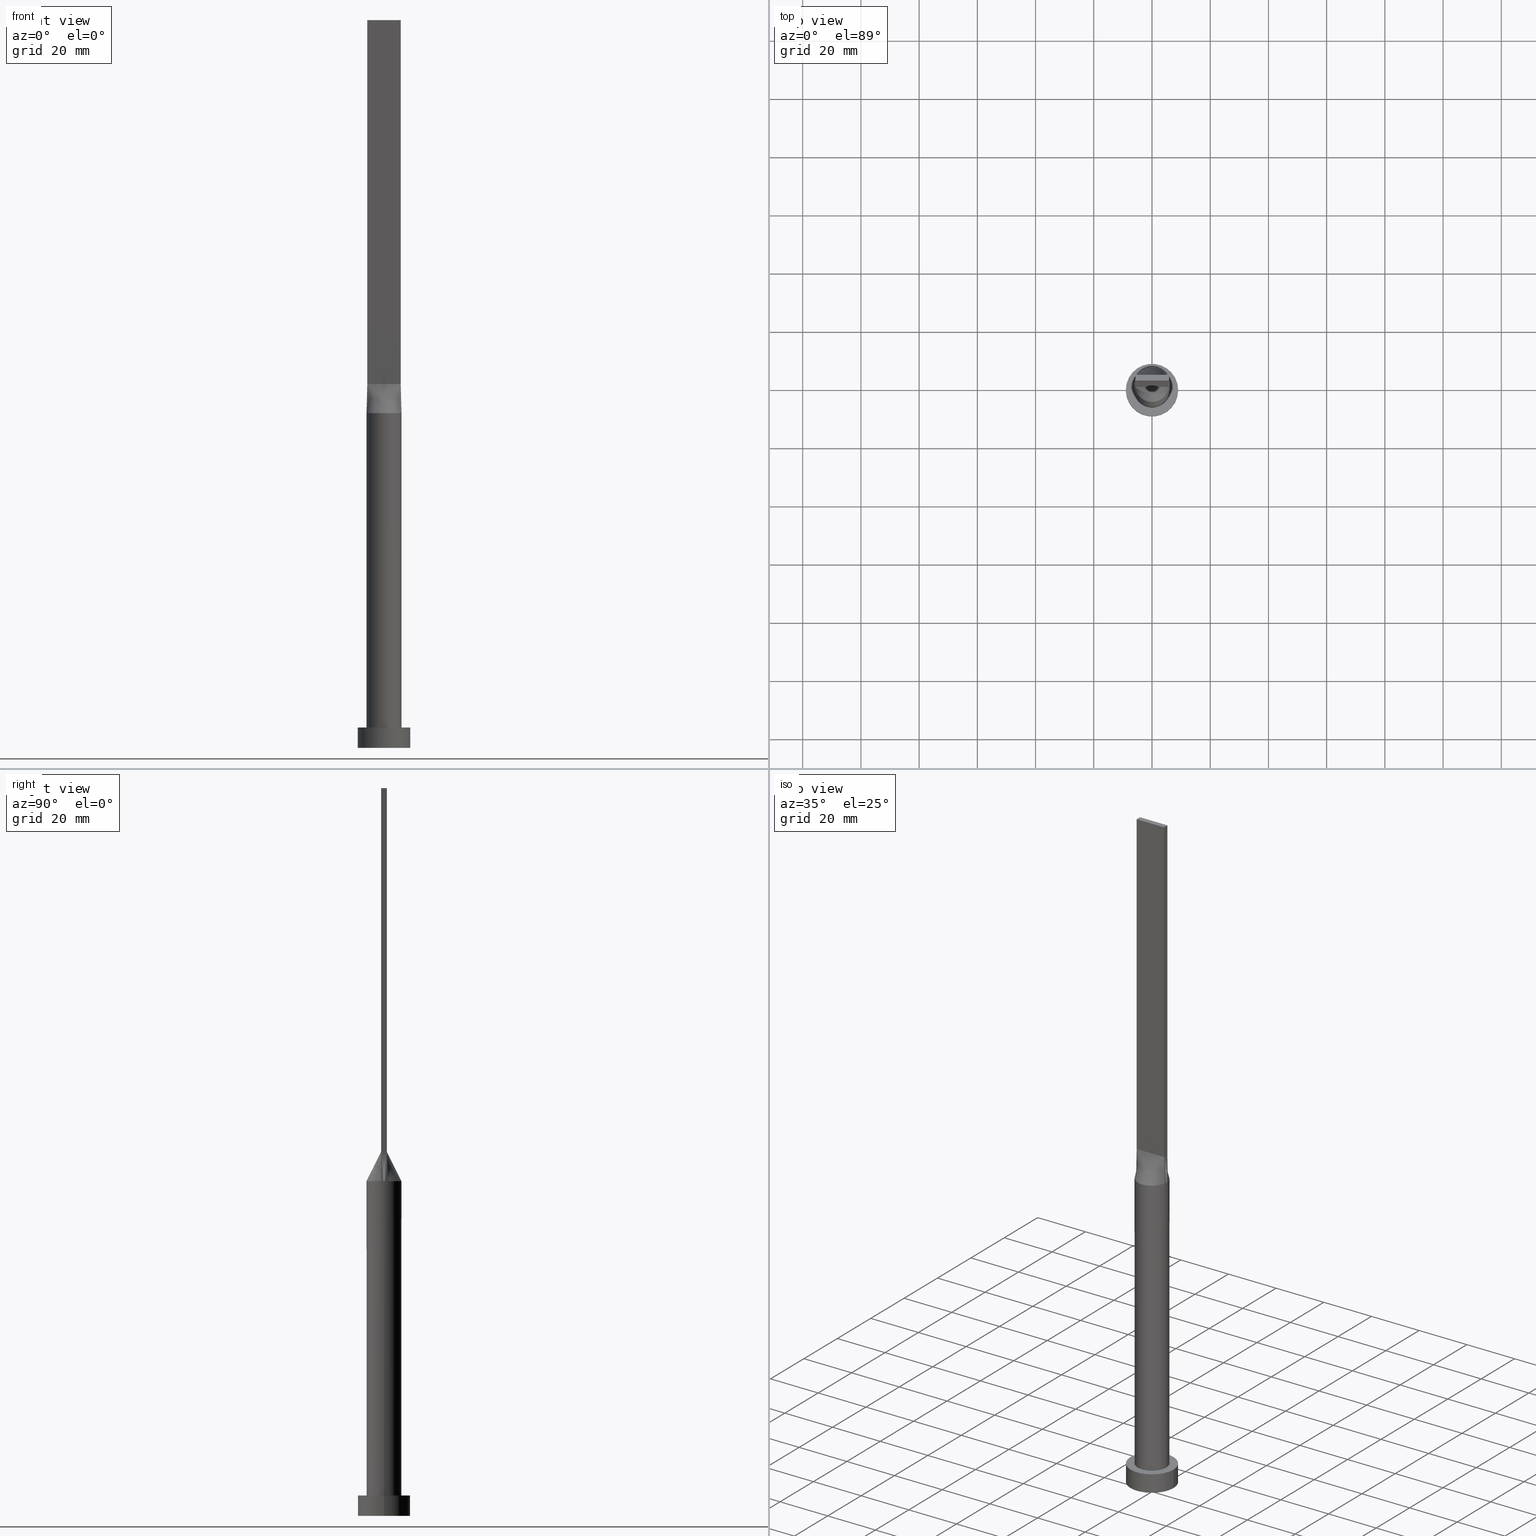
[diagram: canonical four-view strip — front | top / right | iso, engineering-drawing reading convention]
A machine part, canonical four-view strip (front | top / right | iso — engineering-drawing reading convention). The complete STEP part file that produces these views, byte-faithful:
ISO-10303-21;
HEADER;
FILE_DESCRIPTION (( 'STEP AP203' ),
    '1' );
FILE_NAME ('db99.STEP',
    '2023-02-13T08:34:24',
    ( '' ),
    ( '' ),
    'SwSTEP 2.0',
    'SolidWorks 2019',
    '' );
FILE_SCHEMA (( 'CONFIG_CONTROL_DESIGN' ));
ENDSEC;

DATA;
#1 = ORIENTED_EDGE ( 'NONE', *, *, #300, .T. ) ;
#2 = EDGE_CURVE ( 'NONE', #331, #342, #517, .T. ) ;
#3 = ORIENTED_EDGE ( 'NONE', *, *, #456, .F. ) ;
#4 = CARTESIAN_POINT ( 'NONE',  ( 5.969986125248324171, 0.6904323696084009310, 115.0000000000000000 ) ) ;
#5 = CARTESIAN_POINT ( 'NONE',  ( -3.129188161608685181, 5.133661927581553819, 114.9999999999999858 ) ) ;
#6 = CLOSED_SHELL ( 'NONE', ( #247, #363, #410, #173, #440, #500, #487, #255, #319, #545, #97, #146, #549, #113, #106 ) ) ;
#7 = FACE_OUTER_BOUND ( 'NONE', #303, .T. ) ;
#8 = CARTESIAN_POINT ( 'NONE',  ( 3.755743307515265084, 4.694751915224760097, 114.9999999999999858 ) ) ;
#9 = CC_DESIGN_APPROVAL ( #100, ( #467 ) ) ;
#10 = DIRECTION ( 'NONE',  ( 0.000000000000000000, -0.000000000000000000, -1.000000000000000000 ) ) ;
#11 = VERTEX_POINT ( 'NONE', #142 ) ;
#12 = CARTESIAN_POINT ( 'NONE',  ( 4.038230363771782905, 4.452009983475585742, 115.0000000000000000 ) ) ;
#13 = FACE_OUTER_BOUND ( 'NONE', #136, .T. ) ;
#14 = ORIENTED_EDGE ( 'NONE', *, *, #385, .F. ) ;
#15 = EDGE_LOOP ( 'NONE', ( #306, #243, #346, #465 ) ) ;
#16 = CARTESIAN_POINT ( 'NONE',  ( -5.674157483178163375, 2.041064365575947726, 114.9999999999999716 ) ) ;
#17 = CARTESIAN_POINT ( 'NONE',  ( -3.755743307515264195, 4.694751915224762762, 114.9999999999999858 ) ) ;
#18 = EDGE_CURVE ( 'NONE', #240, #414, #288, .T. ) ;
#19 = ORIENTED_EDGE ( 'NONE', *, *, #429, .T. ) ;
#20 = CARTESIAN_POINT ( 'NONE',  ( -5.911270528918048051, 1.028047048507485517, 115.0000000000000000 ) ) ;
#21 = CARTESIAN_POINT ( 'NONE',  ( -5.969986125248324171, -0.6904323696084029294, 115.0000000000000000 ) ) ;
#22 = CIRCLE ( 'NONE', #96, 9.000000000000000000 ) ;
#23 = CARTESIAN_POINT ( 'NONE',  ( -5.826866859193279069, 1.513368149424918263, 115.0000000000000000 ) ) ;
#24 = CARTESIAN_POINT ( 'NONE',  ( 0.000000000000000000, 0.000000000000000000, 115.0000000000000000 ) ) ;
#25 = CARTESIAN_POINT ( 'NONE',  ( 4.788055724916948641, 3.685825800347680925, 114.9999999999999716 ) ) ;
#26 = CARTESIAN_POINT ( 'NONE',  ( 6.000000000000000888, 7.347880794884120722E-16, 115.0000000000000000 ) ) ;
#27 = COORDINATED_UNIVERSAL_TIME_OFFSET ( 1, 0, .AHEAD. ) ;
#28 = EDGE_CURVE ( 'NONE', #480, #150, #187, .T. ) ;
#29 = CARTESIAN_POINT ( 'NONE',  ( -5.750000000000000000, -0.9999999999999988898, 125.0000000000000000 ) ) ;
#30 = APPLICATION_PROTOCOL_DEFINITION ( 'international standard', 'config_control_design', 1994, #156 ) ;
#31 = AXIS2_PLACEMENT_3D ( 'NONE', #313, #167, #355 ) ;
#32 = FACE_OUTER_BOUND ( 'NONE', #198, .T. ) ;
#33 = CARTESIAN_POINT ( 'NONE',  ( -5.750000000000000000, 1.000000000000000000, 250.0000000000000000 ) ) ;
#34 = DATE_AND_TIME ( #276, #121 ) ;
#35 = CARTESIAN_POINT ( 'NONE',  ( 5.270833333333333037, 1.000000000000000000, 125.0000000000000000 ) ) ;
#36 = COORDINATED_UNIVERSAL_TIME_OFFSET ( 1, 0, .AHEAD. ) ;
#37 = DIRECTION ( 'NONE',  ( 1.000000000000000000, -7.542275982507857147E-17, 0.000000000000000000 ) ) ;
#38 = CARTESIAN_POINT ( 'NONE',  ( 5.155904004142093378, 3.127085030567957169, 114.9999999999999432 ) ) ;
#39 = DATE_AND_TIME ( #318, #130 ) ;
#40 = ORIENTED_EDGE ( 'NONE', *, *, #211, .F. ) ;
#41 = APPROVAL_PERSON_ORGANIZATION ( #264, #171, #463 ) ;
#42 = CARTESIAN_POINT ( 'NONE',  ( 5.911270528918047162, -1.028047048507488848, 115.0000000000000000 ) ) ;
#43 = ORIENTED_EDGE ( 'NONE', *, *, #568, .F. ) ;
#44 = EDGE_CURVE ( 'NONE', #277, #11, #526, .T. ) ;
#45 = CARTESIAN_POINT ( 'NONE',  ( 2.047812955694711778, -5.654083712646525761, 115.0000000000000000 ) ) ;
#46 = DIRECTION ( 'NONE',  ( -0.000000000000000000, 0.000000000000000000, -1.000000000000000000 ) ) ;
#47 = ORIENTED_EDGE ( 'NONE', *, *, #48, .F. ) ;
#48 = EDGE_CURVE ( 'NONE', #342, #277, #148, .T. ) ;
#49 = CARTESIAN_POINT ( 'NONE',  ( -3.129188161608687402, -5.133661927581552042, 115.0000000000000426 ) ) ;
#50 = B_SPLINE_CURVE_WITH_KNOTS ( 'NONE', 3,
 ( #375, #147, #332, #345, #519, #289, #8, #476, #386, #298, #64, #54, #196, #521, #239, #578, #441, #430, #5, #17, #338, #380, #523, #293, #53, #60 ),
 .UNSPECIFIED., .F., .F.,
 ( 4, 2, 2, 2, 2, 2, 2, 2, 2, 2, 2, 2, 4 ),
 ( 0.000000000000000000, 0.1250000000000000000, 0.2500000000000000000, 0.3125000000000000000, 0.3750000000000000000, 0.4375000000000000000, 0.5000000000000000000, 0.5625000000000000000, 0.6250000000000000000, 0.6875000000000000000, 0.7500000000000000000, 0.8750000000000000000, 1.000000000000000000 ),
 .UNSPECIFIED. ) ;
#51 = VERTEX_POINT ( 'NONE', #324 ) ;
#52 = AXIS2_PLACEMENT_3D ( 'NONE', #263, #535, #397 ) ;
#53 = CARTESIAN_POINT ( 'NONE',  ( -5.826866859193279069, 1.513368149424918263, 115.0000000000000000 ) ) ;
#54 = CARTESIAN_POINT ( 'NONE',  ( 0.8409966403356972098, 5.955311887059998810, 115.0000000000000000 ) ) ;
#55 = LINE ( 'NONE', #393, #426 ) ;
#56 = APPLICATION_CONTEXT ( 'configuration controlled 3d designs of mechanical parts and assemblies' ) ;
#57 = VERTEX_POINT ( 'NONE', #619 ) ;
#58 = CARTESIAN_POINT ( 'NONE',  ( -1.197916666666670515, 1.000000000000000000, 125.0000000000000000 ) ) ;
#59 = EDGE_CURVE ( 'NONE', #331, #205, #282, .T. ) ;
#60 = CARTESIAN_POINT ( 'NONE',  ( -5.911281259919041631, 1.028048927730119244, 115.0000000000000000 ) ) ;
#61 = LOCAL_TIME ( 9, 34, 24.00000000000000000, #84 ) ;
#62 = CARTESIAN_POINT ( 'NONE',  ( 0.4205485882577719159, 6.000000000000000000, 115.0000000000000142 ) ) ;
#63 = CARTESIAN_POINT ( 'NONE',  ( 0.000000000000000000, 0.000000000000000000, 0.000000000000000000 ) ) ;
#64 = CARTESIAN_POINT ( 'NONE',  ( 1.654707822076785684, 5.782296865845954592, 114.9999999999999858 ) ) ;
#65 = CARTESIAN_POINT ( 'NONE',  ( -5.750000000000000000, -0.9999999999999988898, 250.0000000000000000 ) ) ;
#66 = PRODUCT ( 'db99', 'db99', '', ( #540 ) ) ;
#67 = CARTESIAN_POINT ( 'NONE',  ( -5.750000000000000000, -0.9999999999999988898, 125.0000000000000000 ) ) ;
#68 = CARTESIAN_POINT ( 'NONE',  ( -3.129188161608685181, 5.133661927581553819, 114.9999999999999858 ) ) ;
#69 = AXIS2_PLACEMENT_3D ( 'NONE', #160, #388, #579 ) ;
#70 = CARTESIAN_POINT ( 'NONE',  ( 9.000000000000000000, 1.102182119232617714E-15, 7.000000000000000000 ) ) ;
#71 = DIRECTION ( 'NONE',  ( -0.000000000000000000, -0.000000000000000000, -1.000000000000000000 ) ) ;
#72 = CIRCLE ( 'NONE', #297, 9.000000000000000000 ) ;
#73 = CARTESIAN_POINT ( 'NONE',  ( -5.830635264459023581, 1.014023524253742758, 120.0000000000000000 ) ) ;
#74 = CARTESIAN_POINT ( 'NONE',  ( -5.750000000000000000, -0.6666666666666660745, 125.0000000000000000 ) ) ;
#75 = EDGE_LOOP ( 'NONE', ( #427, #582 ) ) ;
#76 = EDGE_CURVE ( 'NONE', #414, #205, #489, .T. ) ;
#77 = DIRECTION ( 'NONE',  ( 0.000000000000000000, 0.000000000000000000, 1.000000000000000000 ) ) ;
#78 = ORIENTED_EDGE ( 'NONE', *, *, #415, .F. ) ;
#79 = APPROVAL_STATUS ( 'not_yet_approved' ) ;
#80 = CARTESIAN_POINT ( 'NONE',  ( -5.750000000000000000, 0.3333333333333333148, 125.0000000000000000 ) ) ;
#81 = VECTOR ( 'NONE', #527, 1000.000000000000114 ) ;
#82 = ORIENTED_EDGE ( 'NONE', *, *, #435, .F. ) ;
#83 = CARTESIAN_POINT ( 'NONE',  ( 5.750000000000000000, -0.9999999999999997780, 250.0000000000000000 ) ) ;
#84 = COORDINATED_UNIVERSAL_TIME_OFFSET ( 1, 0, .AHEAD. ) ;
#85 = CARTESIAN_POINT ( 'NONE',  ( 5.674157483178163375, 2.041064365575945061, 114.9999999999999858 ) ) ;
#86 = PERSON_AND_ORGANIZATION_ROLE ( 'design_owner' ) ;
#87 = CARTESIAN_POINT ( 'NONE',  ( 3.129188161608682073, -5.133661927581553819, 114.9999999999999858 ) ) ;
#88 = AXIS2_PLACEMENT_3D ( 'NONE', #279, #191, #46 ) ;
#89 = ORIENTED_EDGE ( 'NONE', *, *, #562, .F. ) ;
#90 = APPROVAL_PERSON_ORGANIZATION ( #219, #518, #497 ) ;
#91 = CARTESIAN_POINT ( 'NONE',  ( 3.755743307515260643, -4.694751915224761873, 114.9999999999999858 ) ) ;
#92 = CARTESIAN_POINT ( 'NONE',  ( 5.826866859193276404, -1.513368149424921372, 115.0000000000000284 ) ) ;
#93 = ORIENTED_EDGE ( 'NONE', *, *, #610, .T. ) ;
#94 = ORIENTED_EDGE ( 'NONE', *, *, #415, .T. ) ;
#95 = ORIENTED_EDGE ( 'NONE', *, *, #429, .F. ) ;
#96 = AXIS2_PLACEMENT_3D ( 'NONE', #551, #222, #409 ) ;
#97 = ADVANCED_FACE ( 'NONE', ( #445 ), #592, .F. ) ;
#98 = FACE_OUTER_BOUND ( 'NONE', #423, .T. ) ;
#99 = ORIENTED_EDGE ( 'NONE', *, *, #2, .F. ) ;
#100 = APPROVAL ( #595, 'NEUR�EN�' ) ;
#101 = LINE ( 'NONE', #251, #81 ) ;
#102 = EDGE_LOOP ( 'NONE', ( #413, #411, #115, #607 ) ) ;
#103 = FACE_OUTER_BOUND ( 'NONE', #571, .T. ) ;
#104 = DIRECTION ( 'NONE',  ( -0.000000000000000000, -0.000000000000000000, -1.000000000000000000 ) ) ;
#105 = FACE_OUTER_BOUND ( 'NONE', #102, .T. ) ;
#106 = ADVANCED_FACE ( 'NONE', ( #105 ), #584, .T. ) ;
#107 = PLANE ( 'NONE',  #511 ) ;
#108 = CARTESIAN_POINT ( 'NONE',  ( 5.750000000000000000, -0.9999999999999997780, 125.0000000000000000 ) ) ;
#109 = CARTESIAN_POINT ( 'NONE',  ( 5.750000000000000000, 1.000000000000000000, 125.0000000000000000 ) ) ;
#110 = VECTOR ( 'NONE', #444, 1000.000000000000000 ) ;
#111 = CC_DESIGN_APPROVAL ( #171, ( #347 ) ) ;
#112 = CARTESIAN_POINT ( 'NONE',  ( 0.4791666666666629104, 1.000000000000000000, 125.0000000000000000 ) ) ;
#113 = ADVANCED_FACE ( 'NONE', ( #528 ), #614, .F. ) ;
#114 = CARTESIAN_POINT ( 'NONE',  ( -5.750000000000000000, 0.6666666666666665186, 125.0000000000000000 ) ) ;
#115 = ORIENTED_EDGE ( 'NONE', *, *, #18, .T. ) ;
#116 = ORIENTED_EDGE ( 'NONE', *, *, #145, .F. ) ;
#117 = CARTESIAN_POINT ( 'NONE',  ( -3.354166666666669627, 1.000000000000000000, 125.0000000000000000 ) ) ;
#118 = CARTESIAN_POINT ( 'NONE',  ( 5.830635264459022693, -1.014023524253744313, 120.0000000000000000 ) ) ;
#119 = DIRECTION ( 'NONE',  ( 0.000000000000000000, 0.000000000000000000, 1.000000000000000000 ) ) ;
#120 = CARTESIAN_POINT ( 'NONE',  ( -5.999343923413460899, -0.3452161848042010761, 115.0000000000000000 ) ) ;
#121 = LOCAL_TIME ( 9, 34, 24.00000000000000000, #27 ) ;
#122 = DIRECTION ( 'NONE',  ( 1.000000000000000000, 0.000000000000000000, 0.000000000000000000 ) ) ;
#123 = DATE_TIME_ROLE ( 'classification_date' ) ;
#124 = LINE ( 'NONE', #498, #110 ) ;
#125 = EDGE_CURVE ( 'NONE', #291, #361, #140, .T. ) ;
#126 = APPROVAL_DATE_TIME ( #357, #518 ) ;
#127 = DIRECTION ( 'NONE',  ( -0.000000000000000000, -0.000000000000000000, -1.000000000000000000 ) ) ;
#128 = DIRECTION ( 'NONE',  ( 0.000000000000000000, 0.000000000000000000, 1.000000000000000000 ) ) ;
#129 = CARTESIAN_POINT ( 'NONE',  ( 5.911270528918048051, 1.028047048507485961, 115.0000000000000000 ) ) ;
#130 = LOCAL_TIME ( 9, 34, 24.00000000000000000, #458 ) ;
#131 = EDGE_CURVE ( 'NONE', #570, #150, #377, .T. ) ;
#132 = DIRECTION ( 'NONE',  ( 1.000000000000000000, 0.000000000000000000, 0.000000000000000000 ) ) ;
#133 = CARTESIAN_POINT ( 'NONE',  ( 5.750000000000000000, -0.9999999999999997780, 125.0000000000000000 ) ) ;
#134 = CALENDAR_DATE ( 2023, 13, 2 ) ;
#135 = DIRECTION ( 'NONE',  ( 0.000000000000000000, 0.000000000000000000, 1.000000000000000000 ) ) ;
#136 = EDGE_LOOP ( 'NONE', ( #394, #233, #99, #615, #43 ) ) ;
#137 = DIRECTION ( 'NONE',  ( -0.000000000000000000, -0.000000000000000000, -1.000000000000000000 ) ) ;
#138 = CARTESIAN_POINT ( 'NONE',  ( -1.197916666666638097, -0.9999999999999991118, 125.0000000000000000 ) ) ;
#139 = DIRECTION ( 'NONE',  ( 1.000000000000000000, 0.000000000000000000, 0.000000000000000000 ) ) ;
#140 = LINE ( 'NONE', #273, #574 ) ;
#141 = CARTESIAN_POINT ( 'NONE',  ( 2.635416666666687835, -0.9999999999999991118, 125.0000000000000000 ) ) ;
#142 = CARTESIAN_POINT ( 'NONE',  ( 5.999671961706731338, 1.511234776062676333E-15, 115.0000000000000000 ) ) ;
#143 = CC_DESIGN_APPROVAL ( #518, ( #529 ) ) ;
#144 = CARTESIAN_POINT ( 'NONE',  ( -1.677083333333305948, -0.9999999999999991118, 125.0000000000000000 ) ) ;
#145 = EDGE_CURVE ( 'NONE', #205, #271, #238, .T. ) ;
#146 = ADVANCED_FACE ( 'NONE', ( #558 ), #621, .F. ) ;
#147 = CARTESIAN_POINT ( 'NONE',  ( 5.826866859193277293, 1.513368149424917153, 115.0000000000000142 ) ) ;
#148 = CIRCLE ( 'NONE', #516, 6.000000000000000888 ) ;
#149 = VECTOR ( 'NONE', #490, 1000.000000000000114 ) ;
#150 = VERTEX_POINT ( 'NONE', #193 ) ;
#151 = CARTESIAN_POINT ( 'NONE',  ( 5.969986125248322395, -0.6904323696084077033, 115.0000000000000000 ) ) ;
#152 = ORIENTED_EDGE ( 'NONE', *, *, #44, .F. ) ;
#153 = CARTESIAN_POINT ( 'NONE',  ( 0.8409966403356972098, 5.955311887059998810, 115.0000000000000000 ) ) ;
#154 = VERTEX_POINT ( 'NONE', #561 ) ;
#155 = DIRECTION ( 'NONE',  ( -1.000000000000000000, 0.000000000000000000, 0.000000000000000000 ) ) ;
#156 = APPLICATION_CONTEXT ( 'configuration controlled 3d designs of mechanical parts and assemblies' ) ;
#157 = CARTESIAN_POINT ( 'NONE',  ( 2.395833333333329485, 1.000000000000000000, 125.0000000000000000 ) ) ;
#158 = CARTESIAN_POINT ( 'NONE',  ( -5.911270528918048051, 1.028047048507486849, 115.0000000000000000 ) ) ;
#159 = ORIENTED_EDGE ( 'NONE', *, *, #28, .T. ) ;
#160 = CARTESIAN_POINT ( 'NONE',  ( 0.000000000000000000, 0.000000000000000000, 250.0000000000000000 ) ) ;
#161 = CARTESIAN_POINT ( 'NONE',  ( -0.9583333333333370341, 1.000000000000000000, 125.0000000000000000 ) ) ;
#162 = CARTESIAN_POINT ( 'NONE',  ( 5.911281968884419591, -1.028049053400068802, 115.0000000000000000 ) ) ;
#163 = B_SPLINE_SURFACE_WITH_KNOTS ( 'NONE', 3, 1, ( 
 ( #451, #29 ),
 ( #220, #405 ),
 ( #176, #606 ),
 ( #459, #192 ),
 ( #364, #234 ),
 ( #422, #278 ),
 ( #371, #199 ),
 ( #49, #559 ),
 ( #566, #144 ),
 ( #368, #138 ),
 ( #325, #557 ),
 ( #284, #183 ),
 ( #613, #224 ),
 ( #420, #328 ),
 ( #510, #504 ),
 ( #316, #554 ),
 ( #45, #383 ),
 ( #188, #322 ),
 ( #87, #508 ),
 ( #91, #229 ),
 ( #227, #141 ),
 ( #617, #320 ),
 ( #620, #514 ),
 ( #417, #412 ),
 ( #92, #232 ),
 ( #42, #133 ) ),
 .UNSPECIFIED., .F., .F., .F.,
 ( 4, 2, 2, 2, 2, 2, 2, 2, 2, 2, 2, 2, 4 ),
 ( 2, 2 ),
 ( 0.000000000000000000, 0.1250000000000001388, 0.2500000000000002776, 0.3125000000000002220, 0.3750000000000001665, 0.4375000000000001665, 0.5000000000000001110, 0.5625000000000001110, 0.6250000000000000000, 0.6875000000000000000, 0.7499999999999998890, 0.8750000000000000000, 1.000000000000000000 ),
 ( 0.000000000000000000, 1.000000000000000000 ),
 .UNSPECIFIED. ) ;
#164 = PRODUCT_RELATED_PRODUCT_CATEGORY ( 'detail', '', ( #66 ) ) ;
#165 = ORIENTED_EDGE ( 'NONE', *, *, #376, .F. ) ;
#166 = CARTESIAN_POINT ( 'NONE',  ( -4.791666666666667851, 1.000000000000000000, 125.0000000000000000 ) ) ;
#167 = DIRECTION ( 'NONE',  ( 0.000000000000000000, 0.000000000000000000, 1.000000000000000000 ) ) ;
#168 = CARTESIAN_POINT ( 'NONE',  ( 3.354166666666664298, 1.000000000000000000, 125.0000000000000000 ) ) ;
#169 = DIRECTION ( 'NONE',  ( -1.000000000000000000, 0.000000000000000000, 0.000000000000000000 ) ) ;
#170 = DIRECTION ( 'NONE',  ( 0.000000000000000000, 0.000000000000000000, 1.000000000000000000 ) ) ;
#171 = APPROVAL ( #460, 'NEUR�EN�' ) ;
#172 = DIRECTION ( 'NONE',  ( -0.01612489271847465655, 0.002804329168430633092, 0.9998660528154422744 ) ) ;
#173 = ADVANCED_FACE ( 'NONE', ( #567, #515 ), #421, .T. ) ;
#174 = CIRCLE ( 'NONE', #268, 6.000000000000000888 ) ;
#175 = DATE_AND_TIME ( #354, #542 ) ;
#176 = CARTESIAN_POINT ( 'NONE',  ( -5.674157483178165151, -2.041064365575944173, 115.0000000000000426 ) ) ;
#177 = EDGE_CURVE ( 'NONE', #214, #331, #327, .T. ) ;
#178 = PERSON_AND_ORGANIZATION_ROLE ( 'design_supplier' ) ;
#179 = PLANE ( 'NONE',  #52 ) ;
#180 = ORIENTED_EDGE ( 'NONE', *, *, #186, .T. ) ;
#181 = APPROVAL_DATE_TIME ( #34, #171 ) ;
#182 = DIRECTION ( 'NONE',  ( 0.000000000000000000, 0.000000000000000000, 1.000000000000000000 ) ) ;
#183 = CARTESIAN_POINT ( 'NONE',  ( -0.4791666666666375973, -0.9999999999999991118, 125.0000000000000000 ) ) ;
#184 = DIRECTION ( 'NONE',  ( 1.000000000000000000, 0.000000000000000000, 0.000000000000000000 ) ) ;
#185 = VECTOR ( 'NONE', #207, 1000.000000000000000 ) ;
#186 = EDGE_CURVE ( 'NONE', #361, #214, #210, .T. ) ;
#187 = LINE ( 'NONE', #367, #491 ) ;
#188 = CARTESIAN_POINT ( 'NONE',  ( 2.785082292717038221, -5.329682650394847343, 114.9999999999999858 ) ) ;
#189 = ORIENTED_EDGE ( 'NONE', *, *, #59, .T. ) ;
#190 = CYLINDRICAL_SURFACE ( 'NONE', #520, 6.000000000000000888 ) ;
#191 = DIRECTION ( 'NONE',  ( 1.000000000000000000, 0.000000000000000000, -0.000000000000000000 ) ) ;
#192 = CARTESIAN_POINT ( 'NONE',  ( -3.833333333333316162, -0.9999999999999991118, 125.0000000000000000 ) ) ;
#193 = CARTESIAN_POINT ( 'NONE',  ( -6.000000000000000888, 0.000000000000000000, 7.000000000000000000 ) ) ;
#194 = CARTESIAN_POINT ( 'NONE',  ( 5.750000000000000000, -0.6666666666666662966, 125.0000000000000000 ) ) ;
#195 = ORIENTED_EDGE ( 'NONE', *, *, #125, .F. ) ;
#196 = CARTESIAN_POINT ( 'NONE',  ( 0.4205485882577719159, 6.000000000000000000, 115.0000000000000142 ) ) ;
#197 = VECTOR ( 'NONE', #464, 1000.000000000000000 ) ;
#198 = EDGE_LOOP ( 'NONE', ( #89, #378, #19, #442 ) ) ;
#199 = CARTESIAN_POINT ( 'NONE',  ( -2.395833333333308168, -0.9999999999999991118, 125.0000000000000000 ) ) ;
#200 = APPROVAL_PERSON_ORGANIZATION ( #401, #100, #269 ) ;
#201 = CARTESIAN_POINT ( 'NONE',  ( -5.750000000000000000, -0.9999999999999988898, 250.0000000000000000 ) ) ;
#202 = CARTESIAN_POINT ( 'NONE',  ( 1.197916666666663188, 1.000000000000000000, 125.0000000000000000 ) ) ;
#203 = DIRECTION ( 'NONE',  ( 0.000000000000000000, -1.000000000000000000, 0.000000000000000000 ) ) ;
#204 = DIRECTION ( 'NONE',  ( 0.000000000000000000, -1.000000000000000000, 0.000000000000000000 ) ) ;
#205 = VERTEX_POINT ( 'NONE', #108 ) ;
#206 = CARTESIAN_POINT ( 'NONE',  ( -2.395833333333336590, 1.000000000000000000, 125.0000000000000000 ) ) ;
#207 = DIRECTION ( 'NONE',  ( -0.000000000000000000, -0.000000000000000000, -1.000000000000000000 ) ) ;
#208 = DIRECTION ( 'NONE',  ( 0.000000000000000000, 0.000000000000000000, 1.000000000000000000 ) ) ;
#209 = DIRECTION ( 'NONE',  ( 0.000000000000000000, 0.000000000000000000, 1.000000000000000000 ) ) ;
#210 = LINE ( 'NONE', #381, #553 ) ;
#211 = EDGE_CURVE ( 'NONE', #154, #575, #286, .T. ) ;
#212 = DIRECTION ( 'NONE',  ( 7.542275982507857147E-17, 1.000000000000000000, -0.000000000000000000 ) ) ;
#213 = CARTESIAN_POINT ( 'NONE',  ( 0.000000000000000000, 0.000000000000000000, 7.000000000000000000 ) ) ;
#214 = VERTEX_POINT ( 'NONE', #230 ) ;
#215 = DIRECTION ( 'NONE',  ( 0.000000000000000000, -1.000000000000000000, 0.000000000000000000 ) ) ;
#216 = LINE ( 'NONE', #73, #149 ) ;
#217 = ORIENTED_EDGE ( 'NONE', *, *, #395, .T. ) ;
#218 = CARTESIAN_POINT ( 'NONE',  ( 0.000000000000000000, 0.000000000000000000, 0.000000000000000000 ) ) ;
#219 = PERSON_AND_ORGANIZATION ( #379, #373 ) ;
#220 = CARTESIAN_POINT ( 'NONE',  ( -5.826866859193279957, -1.513368149424916931, 114.9999999999999858 ) ) ;
#221 = PERSON_AND_ORGANIZATION_ROLE ( 'creator' ) ;
#222 = DIRECTION ( 'NONE',  ( 0.000000000000000000, 0.000000000000000000, 1.000000000000000000 ) ) ;
#223 = EDGE_CURVE ( 'NONE', #361, #240, #437, .T. ) ;
#224 = CARTESIAN_POINT ( 'NONE',  ( -0.2395833333333046988, -0.9999999999999991118, 125.0000000000000000 ) ) ;
#225 = CARTESIAN_POINT ( 'NONE',  ( -5.830635264459023581, -1.014023524253742092, 120.0000000000000000 ) ) ;
#226 = AXIS2_PLACEMENT_3D ( 'NONE', #403, #598, #135 ) ;
#227 = CARTESIAN_POINT ( 'NONE',  ( 4.038230363771777576, -4.452009983475586630, 115.0000000000000000 ) ) ;
#228 = ORIENTED_EDGE ( 'NONE', *, *, #76, .T. ) ;
#229 = CARTESIAN_POINT ( 'NONE',  ( 2.395833333333355686, -0.9999999999999991118, 125.0000000000000000 ) ) ;
#230 = CARTESIAN_POINT ( 'NONE',  ( -5.750000000000000000, 1.000000000000000000, 125.0000000000000000 ) ) ;
#231 = CC_DESIGN_PERSON_AND_ORGANIZATION_ASSIGNMENT ( #366, #86, ( #66 ) ) ;
#232 = CARTESIAN_POINT ( 'NONE',  ( 5.270833333333338366, -0.9999999999999995559, 125.0000000000000000 ) ) ;
#233 = ORIENTED_EDGE ( 'NONE', *, *, #435, .T. ) ;
#234 = CARTESIAN_POINT ( 'NONE',  ( -3.354166666666646091, -0.9999999999999991118, 125.0000000000000000 ) ) ;
#235 = VECTOR ( 'NONE', #612, 1000.000000000000114 ) ;
#236 = AXIS2_PLACEMENT_3D ( 'NONE', #594, #77, #402 ) ;
#237 = CARTESIAN_POINT ( 'NONE',  ( 5.999343923413460899, 0.3452161848041986891, 115.0000000000000000 ) ) ;
#238 = LINE ( 'NONE', #605, #197 ) ;
#239 = CARTESIAN_POINT ( 'NONE',  ( -0.8409966403356965436, 5.955311887059998810, 115.0000000000000142 ) ) ;
#240 = VERTEX_POINT ( 'NONE', #201 ) ;
#241 = ORIENTED_EDGE ( 'NONE', *, *, #186, .F. ) ;
#242 = CARTESIAN_POINT ( 'NONE',  ( 5.911270528918048939, 1.028047048507483519, 115.0000000000000000 ) ) ;
#243 = ORIENTED_EDGE ( 'NONE', *, *, #419, .T. ) ;
#244 = DIRECTION ( 'NONE',  ( 1.000000000000000000, -7.542275982507857147E-17, 0.000000000000000000 ) ) ;
#245 = EDGE_CURVE ( 'NONE', #240, #331, #55, .T. ) ;
#246 = CARTESIAN_POINT ( 'NONE',  ( -2.785082292717042218, 5.329682650394847343, 114.9999999999999716 ) ) ;
#247 = ADVANCED_FACE ( 'NONE', ( #484 ), #335, .T. ) ;
#248 = LINE ( 'NONE', #436, #185 ) ;
#249 = CARTESIAN_POINT ( 'NONE',  ( -0.2395833333333372561, 1.000000000000000000, 125.0000000000000000 ) ) ;
#250 = DIRECTION ( 'NONE',  ( 0.000000000000000000, 0.000000000000000000, 1.000000000000000000 ) ) ;
#251 = CARTESIAN_POINT ( 'NONE',  ( 5.830635264459024469, 1.014023524253741648, 120.0000000000000000 ) ) ;
#252 = ORIENTED_EDGE ( 'NONE', *, *, #329, .F. ) ;
#253 = DIRECTION ( 'NONE',  ( -1.000000000000000000, 7.542275982507857147E-17, 0.000000000000000000 ) ) ;
#254 = LINE ( 'NONE', #258, #287 ) ;
#255 = ADVANCED_FACE ( 'NONE', ( #98 ), #482, .T. ) ;
#256 = AXIS2_PLACEMENT_3D ( 'NONE', #384, #296, #439 ) ;
#257 = CARTESIAN_POINT ( 'NONE',  ( 6.000000000000000888, 7.347880794884120722E-16, 7.000000000000000000 ) ) ;
#258 = CARTESIAN_POINT ( 'NONE',  ( -9.000000000000000000, 0.000000000000000000, 7.000000000000000000 ) ) ;
#259 = CC_DESIGN_DATE_AND_TIME_ASSIGNMENT ( #499, #123, ( #529 ) ) ;
#260 = DIRECTION ( 'NONE',  ( -0.000000000000000000, -0.000000000000000000, -1.000000000000000000 ) ) ;
#261 = EDGE_LOOP ( 'NONE', ( #473, #416, #552, #180 ) ) ;
#262 = CARTESIAN_POINT ( 'NONE',  ( -5.750000000000000000, 1.000000000000000000, 125.0000000000000000 ) ) ;
#263 = CARTESIAN_POINT ( 'NONE',  ( 0.000000000000000000, 0.000000000000000000, 0.000000000000000000 ) ) ;
#264 = PERSON_AND_ORGANIZATION ( #379, #373 ) ;
#265 = LINE ( 'NONE', #26, #418 ) ;
#266 = ORIENTED_EDGE ( 'NONE', *, *, #131, .T. ) ;
#267 = DIRECTION ( 'NONE',  ( 1.000000000000000000, 0.000000000000000000, 0.000000000000000000 ) ) ;
#268 = AXIS2_PLACEMENT_3D ( 'NONE', #24, #457, #267 ) ;
#269 = APPROVAL_ROLE ( '' ) ;
#270 = CC_DESIGN_PERSON_AND_ORGANIZATION_ASSIGNMENT ( #555, #221, ( #467 ) ) ;
#271 = VERTEX_POINT ( 'NONE', #481 ) ;
#272 = CARTESIAN_POINT ( 'NONE',  ( 5.750000000000000000, 1.000000000000000000, 125.0000000000000000 ) ) ;
#273 = CARTESIAN_POINT ( 'NONE',  ( 5.750000000000000000, 1.000000000000000000, 250.0000000000000000 ) ) ;
#274 = CALENDAR_DATE ( 2023, 13, 2 ) ;
#275 = CARTESIAN_POINT ( 'NONE',  ( 5.826866859193277293, 1.513368149424917153, 115.0000000000000142 ) ) ;
#276 = CALENDAR_DATE ( 2023, 13, 2 ) ;
#277 = VERTEX_POINT ( 'NONE', #162 ) ;
#278 = CARTESIAN_POINT ( 'NONE',  ( -2.635416666666641650, -0.9999999999999991118, 125.0000000000000000 ) ) ;
#279 = CARTESIAN_POINT ( 'NONE',  ( -5.750000000000000000, 1.000000000000000000, 250.0000000000000000 ) ) ;
#280 = VECTOR ( 'NONE', #172, 1000.000000000000114 ) ;
#281 = DIRECTION ( 'NONE',  ( -0.000000000000000000, -0.000000000000000000, -1.000000000000000000 ) ) ;
#282 = LINE ( 'NONE', #398, #452 ) ;
#283 = ORIENTED_EDGE ( 'NONE', *, *, #18, .F. ) ;
#284 = CARTESIAN_POINT ( 'NONE',  ( -0.8409966403356993192, -5.955311887060000586, 115.0000000000000000 ) ) ;
#285 = EDGE_CURVE ( 'NONE', #51, #271, #101, .T. ) ;
#286 = CIRCLE ( 'NONE', #433, 9.000000000000000000 ) ;
#287 = VECTOR ( 'NONE', #127, 1000.000000000000000 ) ;
#288 = LINE ( 'NONE', #513, #586 ) ;
#289 = CARTESIAN_POINT ( 'NONE',  ( 4.038230363771782905, 4.452009983475585742, 115.0000000000000000 ) ) ;
#290 = CARTESIAN_POINT ( 'NONE',  ( 5.750000000000000000, 0.6666666666666669627, 125.0000000000000000 ) ) ;
#291 = VERTEX_POINT ( 'NONE', #431 ) ;
#292 = CARTESIAN_POINT ( 'NONE',  ( 1.654707822076785684, 5.782296865845954592, 114.9999999999999858 ) ) ;
#293 = CARTESIAN_POINT ( 'NONE',  ( -5.674157483178163375, 2.041064365575947726, 114.9999999999999716 ) ) ;
#294 = ORIENTED_EDGE ( 'NONE', *, *, #385, .T. ) ;
#295 =( LENGTH_UNIT ( ) NAMED_UNIT ( * ) SI_UNIT ( .MILLI., .METRE. ) );
#296 = DIRECTION ( 'NONE',  ( 0.000000000000000000, 0.000000000000000000, 1.000000000000000000 ) ) ;
#297 = AXIS2_PLACEMENT_3D ( 'NONE', #218, #209, #602 ) ;
#298 = CARTESIAN_POINT ( 'NONE',  ( 2.047812955694715331, 5.654083712646525761, 114.9999999999999858 ) ) ;
#299 = CARTESIAN_POINT ( 'NONE',  ( -1.916666666666670071, 1.000000000000000000, 125.0000000000000000 ) ) ;
#300 = EDGE_CURVE ( 'NONE', #51, #424, #50, .T. ) ;
#301 = UNCERTAINTY_MEASURE_WITH_UNIT (LENGTH_MEASURE( 1.000000000000000082E-05 ), #295, 'distance_accuracy_value', 'NONE');
#302 = CARTESIAN_POINT ( 'NONE',  ( -5.911281259919041631, 1.028048927730119244, 115.0000000000000000 ) ) ;
#303 = EDGE_LOOP ( 'NONE', ( #1, #583, #78, #512 ) ) ;
#304 = DIRECTION ( 'NONE',  ( 1.000000000000000000, 0.000000000000000000, 0.000000000000000000 ) ) ;
#305 = FACE_OUTER_BOUND ( 'NONE', #475, .T. ) ;
#306 = ORIENTED_EDGE ( 'NONE', *, *, #48, .T. ) ;
#307 = DIRECTION ( 'NONE',  ( 1.000000000000000000, 0.000000000000000000, 0.000000000000000000 ) ) ;
#308 = CYLINDRICAL_SURFACE ( 'NONE', #588, 9.000000000000000000 ) ;
#309 = AXIS2_PLACEMENT_3D ( 'NONE', #443, #208, #304 ) ;
#310 = PERSON_AND_ORGANIZATION ( #379, #373 ) ;
#311 = CARTESIAN_POINT ( 'NONE',  ( 5.750000000000000000, -0.9999999999999997780, 250.0000000000000000 ) ) ;
#312 = SHAPE_DEFINITION_REPRESENTATION ( #589, #336 ) ;
#313 = CARTESIAN_POINT ( 'NONE',  ( 0.000000000000000000, 0.000000000000000000, 115.0000000000000000 ) ) ;
#314 = VECTOR ( 'NONE', #260, 1000.000000000000000 ) ;
#315 = EDGE_CURVE ( 'NONE', #291, #271, #248, .T. ) ;
#316 = CARTESIAN_POINT ( 'NONE',  ( 1.654707822076783019, -5.782296865845954592, 115.0000000000000000 ) ) ;
#317 = CIRCLE ( 'NONE', #31, 6.000000000000000888 ) ;
#318 = CALENDAR_DATE ( 2023, 13, 2 ) ;
#319 = ADVANCED_FACE ( 'NONE', ( #13 ), #391, .T. ) ;
#320 = CARTESIAN_POINT ( 'NONE',  ( 3.354166666666685170, -0.9999999999999993339, 125.0000000000000000 ) ) ;
#321 = ORIENTED_EDGE ( 'NONE', *, *, #610, .F. ) ;
#322 = CARTESIAN_POINT ( 'NONE',  ( 1.677083333333358794, -0.9999999999999991118, 125.0000000000000000 ) ) ;
#323 = CC_DESIGN_PERSON_AND_ORGANIZATION_ASSIGNMENT ( #599, #178, ( #467 ) ) ;
#324 = CARTESIAN_POINT ( 'NONE',  ( 5.911270528918048939, 1.028047048507483519, 115.0000000000000000 ) ) ;
#325 = CARTESIAN_POINT ( 'NONE',  ( -1.654707822076787016, -5.782296865845954592, 115.0000000000000142 ) ) ;
#326 = EDGE_LOOP ( 'NONE', ( #94, #241, #195, #507 ) ) ;
#327 = LINE ( 'NONE', #471, #596 ) ;
#328 = CARTESIAN_POINT ( 'NONE',  ( 0.2395833333333618198, -0.9999999999999991118, 125.0000000000000000 ) ) ;
#329 = EDGE_CURVE ( 'NONE', #424, #480, #174, .T. ) ;
#330 = DIRECTION ( 'NONE',  ( 0.000000000000000000, 0.000000000000000000, 1.000000000000000000 ) ) ;
#331 = VERTEX_POINT ( 'NONE', #67 ) ;
#332 = CARTESIAN_POINT ( 'NONE',  ( 5.674157483178163375, 2.041064365575945061, 114.9999999999999858 ) ) ;
#333 = VECTOR ( 'NONE', #591, 1000.000000000000000 ) ;
#334 = EDGE_LOOP ( 'NONE', ( #14, #348, #266, #407, #252, #564 ) ) ;
#335 = CYLINDRICAL_SURFACE ( 'NONE', #344, 6.000000000000000888 ) ;
#336 = ADVANCED_BREP_SHAPE_REPRESENTATION ( 'db99', ( #387, #382 ), #577 ) ;
#337 = CARTESIAN_POINT ( 'NONE',  ( -3.833333333333336146, 1.000000000000000000, 125.0000000000000000 ) ) ;
#338 = CARTESIAN_POINT ( 'NONE',  ( -4.038230363771780240, 4.452009983475584853, 114.9999999999999716 ) ) ;
#339 = CARTESIAN_POINT ( 'NONE',  ( 5.750000000000000000, -0.9999999999999997780, 250.0000000000000000 ) ) ;
#340 = CARTESIAN_POINT ( 'NONE',  ( 3.833333333333331261, 1.000000000000000000, 125.0000000000000000 ) ) ;
#341 = CARTESIAN_POINT ( 'NONE',  ( -5.750000000000000000, 1.000000000000000000, 125.0000000000000000 ) ) ;
#342 = VERTEX_POINT ( 'NONE', #501 ) ;
#343 = CARTESIAN_POINT ( 'NONE',  ( 0.9583333333333297066, 1.000000000000000000, 125.0000000000000000 ) ) ;
#344 = AXIS2_PLACEMENT_3D ( 'NONE', #572, #104, #155 ) ;
#345 = CARTESIAN_POINT ( 'NONE',  ( 5.155904004142093378, 3.127085030567957169, 114.9999999999999432 ) ) ;
#346 = ORIENTED_EDGE ( 'NONE', *, *, #59, .F. ) ;
#347 = PRODUCT_DEFINITION ( 'NEZN�M�', '', #467, #350 ) ;
#348 = ORIENTED_EDGE ( 'NONE', *, *, #456, .T. ) ;
#349 = CARTESIAN_POINT ( 'NONE',  ( 0.2395833333333294568, 1.000000000000000000, 125.0000000000000000 ) ) ;
#350 = DESIGN_CONTEXT ( 'detailed design', #156, 'design' ) ;
#351 = CARTESIAN_POINT ( 'NONE',  ( -5.750000000000000000, -0.3333333333333330373, 125.0000000000000000 ) ) ;
#352 = CARTESIAN_POINT ( 'NONE',  ( 1.677083333333329929, 1.000000000000000000, 125.0000000000000000 ) ) ;
#353 = LINE ( 'NONE', #70, #333 ) ;
#354 = CALENDAR_DATE ( 2023, 13, 2 ) ;
#355 = DIRECTION ( 'NONE',  ( 1.000000000000000000, 0.000000000000000000, 0.000000000000000000 ) ) ;
#356 = AXIS2_PLACEMENT_3D ( 'NONE', #593, #119, #307 ) ;
#357 = DATE_AND_TIME ( #274, #406 ) ;
#358 = FACE_OUTER_BOUND ( 'NONE', #569, .T. ) ;
#359 = PERSON_AND_ORGANIZATION ( #379, #373 ) ;
#360 = CARTESIAN_POINT ( 'NONE',  ( -5.750000000000000000, 1.000000000000000000, 250.0000000000000000 ) ) ;
#361 = VERTEX_POINT ( 'NONE', #360 ) ;
#362 = PERSON_AND_ORGANIZATION_ROLE ( 'creator' ) ;
#363 = ADVANCED_FACE ( 'NONE', ( #32 ), #601, .T. ) ;
#364 = CARTESIAN_POINT ( 'NONE',  ( -4.788055724916950417, -3.685825800347680925, 115.0000000000000142 ) ) ;
#365 = VECTOR ( 'NONE', #466, 1000.000000000000000 ) ;
#366 = PERSON_AND_ORGANIZATION ( #379, #373 ) ;
#367 = CARTESIAN_POINT ( 'NONE',  ( -6.000000000000000888, 0.000000000000000000, 115.0000000000000000 ) ) ;
#368 = CARTESIAN_POINT ( 'NONE',  ( -2.047812955694717107, -5.654083712646522208, 114.9999999999999716 ) ) ;
#369 = DIRECTION ( 'NONE',  ( -1.000000000000000000, 0.000000000000000000, 0.000000000000000000 ) ) ;
#370 = CARTESIAN_POINT ( 'NONE',  ( 0.000000000000000000, 0.000000000000000000, 7.000000000000000000 ) ) ;
#371 = CARTESIAN_POINT ( 'NONE',  ( -3.755743307515267304, -4.694751915224760985, 115.0000000000000284 ) ) ;
#372 = AXIS2_PLACEMENT_3D ( 'NONE', #449, #543, #547 ) ;
#373 = ORGANIZATION ( 'NEUR�EN�', 'NEUR�EN�', '' ) ;
#374 = EDGE_LOOP ( 'NONE', ( #3, #152, #47, #82, #159, #93 ) ) ;
#375 = CARTESIAN_POINT ( 'NONE',  ( 5.911270528918048939, 1.028047048507483519, 115.0000000000000000 ) ) ;
#376 = EDGE_CURVE ( 'NONE', #544, #57, #22, .T. ) ;
#377 = CIRCLE ( 'NONE', #462, 6.000000000000000888 ) ;
#378 = ORIENTED_EDGE ( 'NONE', *, *, #478, .T. ) ;
#379 = PERSON ( 'NEUR�EN�', 'NEUR�EN�', 'NEUR�EN�', ('NEUR�EN�'), ('NEUR�EN�'), ('NEUR�EN�') ) ;
#380 = CARTESIAN_POINT ( 'NONE',  ( -4.788055724916949529, 3.685825800347683590, 115.0000000000000000 ) ) ;
#381 = CARTESIAN_POINT ( 'NONE',  ( -5.750000000000000000, 1.000000000000000000, 250.0000000000000000 ) ) ;
#382 = AXIS2_PLACEMENT_3D ( 'NONE', #603, #170, #184 ) ;
#383 = CARTESIAN_POINT ( 'NONE',  ( 1.197916666666693830, -0.9999999999999991118, 125.0000000000000000 ) ) ;
#384 = CARTESIAN_POINT ( 'NONE',  ( 0.000000000000000000, 0.000000000000000000, 115.0000000000000000 ) ) ;
#385 = EDGE_CURVE ( 'NONE', #11, #51, #447, .T. ) ;
#386 = CARTESIAN_POINT ( 'NONE',  ( 2.785082292717041330, 5.329682650394847343, 114.9999999999999858 ) ) ;
#387 = MANIFOLD_SOLID_BREP ( 'P�idat vysunut�m5', #6 ) ;
#388 = DIRECTION ( 'NONE',  ( 0.000000000000000000, 0.000000000000000000, 1.000000000000000000 ) ) ;
#389 = CARTESIAN_POINT ( 'NONE',  ( -0.4791666666666705710, 1.000000000000000000, 125.0000000000000000 ) ) ;
#390 = DIRECTION ( 'NONE',  ( -0.000000000000000000, -0.000000000000000000, -1.000000000000000000 ) ) ;
#391 = B_SPLINE_SURFACE_WITH_KNOTS ( 'NONE', 3, 1, ( 
 ( #158, #341 ),
 ( #532, #114 ),
 ( #474, #80 ),
 ( #120, #351 ),
 ( #21, #74 ),
 ( #400, #488 ) ),
 .UNSPECIFIED., .F., .F., .F.,
 ( 4, 2, 4 ),
 ( 2, 2 ),
 ( 0.000000000000000000, 0.5000000000000000000, 1.000000000000000000 ),
 ( 0.000000000000000000, 1.000000000000000000 ),
 .UNSPECIFIED. ) ;
#392 = CARTESIAN_POINT ( 'NONE',  ( 2.047812955694715331, 5.654083712646525761, 114.9999999999999858 ) ) ;
#393 = CARTESIAN_POINT ( 'NONE',  ( -5.750000000000000000, -0.9999999999999988898, 250.0000000000000000 ) ) ;
#394 = ORIENTED_EDGE ( 'NONE', *, *, #329, .T. ) ;
#395 = EDGE_CURVE ( 'NONE', #544, #154, #254, .T. ) ;
#396 = CARTESIAN_POINT ( 'NONE',  ( 3.755743307515265084, 4.694751915224760097, 114.9999999999999858 ) ) ;
#397 = DIRECTION ( 'NONE',  ( 1.000000000000000000, 0.000000000000000000, -0.000000000000000000 ) ) ;
#398 = CARTESIAN_POINT ( 'NONE',  ( -5.750000000000000000, -0.9999999999999988898, 125.0000000000000000 ) ) ;
#399 = CARTESIAN_POINT ( 'NONE',  ( 9.000000000000000000, 1.102182119232617714E-15, 0.000000000000000000 ) ) ;
#400 = CARTESIAN_POINT ( 'NONE',  ( -5.911270528918048051, -1.028047048507485295, 115.0000000000000000 ) ) ;
#401 = PERSON_AND_ORGANIZATION ( #379, #373 ) ;
#402 = DIRECTION ( 'NONE',  ( 1.000000000000000000, 0.000000000000000000, 0.000000000000000000 ) ) ;
#403 = CARTESIAN_POINT ( 'NONE',  ( 5.750000000000000000, -0.9999999999999997780, 250.0000000000000000 ) ) ;
#404 = CC_DESIGN_DATE_AND_TIME_ASSIGNMENT ( #39, #454, ( #347 ) ) ;
#405 = CARTESIAN_POINT ( 'NONE',  ( -5.270833333333328596, -0.9999999999999988898, 125.0000000000000000 ) ) ;
#406 = LOCAL_TIME ( 9, 34, 24.00000000000000000, #450 ) ;
#407 = ORIENTED_EDGE ( 'NONE', *, *, #28, .F. ) ;
#408 = SECURITY_CLASSIFICATION_LEVEL ( 'unclassified' ) ;
#409 = DIRECTION ( 'NONE',  ( 1.000000000000000000, 0.000000000000000000, 0.000000000000000000 ) ) ;
#410 = ADVANCED_FACE ( 'NONE', ( #358 ), #308, .T. ) ;
#411 = ORIENTED_EDGE ( 'NONE', *, *, #223, .T. ) ;
#412 = CARTESIAN_POINT ( 'NONE',  ( 4.791666666666675845, -0.9999999999999995559, 125.0000000000000000 ) ) ;
#413 = ORIENTED_EDGE ( 'NONE', *, *, #125, .T. ) ;
#414 = VERTEX_POINT ( 'NONE', #311 ) ;
#415 = EDGE_CURVE ( 'NONE', #271, #214, #124, .T. ) ;
#416 = ORIENTED_EDGE ( 'NONE', *, *, #245, .F. ) ;
#417 = CARTESIAN_POINT ( 'NONE',  ( 5.674157483178163375, -2.041064365575950390, 115.0000000000000284 ) ) ;
#418 = VECTOR ( 'NONE', #492, 1000.000000000000000 ) ;
#419 = EDGE_CURVE ( 'NONE', #277, #205, #496, .T. ) ;
#420 = CARTESIAN_POINT ( 'NONE',  ( 0.4205485882577698065, -6.000000000000002665, 114.9999999999999858 ) ) ;
#421 = PLANE ( 'NONE',  #509 ) ;
#422 = CARTESIAN_POINT ( 'NONE',  ( -4.038230363771782017, -4.452009983475583077, 115.0000000000000000 ) ) ;
#423 = EDGE_LOOP ( 'NONE', ( #470, #294, #573, #116, #533 ) ) ;
#424 = VERTEX_POINT ( 'NONE', #302 ) ;
#425 = CARTESIAN_POINT ( 'NONE',  ( 0.000000000000000000, 0.000000000000000000, 115.0000000000000000 ) ) ;
#426 = VECTOR ( 'NONE', #390, 1000.000000000000000 ) ;
#427 = ORIENTED_EDGE ( 'NONE', *, *, #376, .T. ) ;
#428 = CARTESIAN_POINT ( 'NONE',  ( 5.750000000000000000, -0.3333333333333328707, 125.0000000000000000 ) ) ;
#429 = EDGE_CURVE ( 'NONE', #575, #154, #72, .T. ) ;
#430 = CARTESIAN_POINT ( 'NONE',  ( -2.785082292717042218, 5.329682650394847343, 114.9999999999999716 ) ) ;
#431 = CARTESIAN_POINT ( 'NONE',  ( 5.750000000000000000, 1.000000000000000000, 250.0000000000000000 ) ) ;
#432 = CARTESIAN_POINT ( 'NONE',  ( 5.750000000000000000, 1.000000000000000000, 250.0000000000000000 ) ) ;
#433 = AXIS2_PLACEMENT_3D ( 'NONE', #63, #250, #132 ) ;
#434 = CARTESIAN_POINT ( 'NONE',  ( -1.677083333333336812, 1.000000000000000000, 125.0000000000000000 ) ) ;
#435 = EDGE_CURVE ( 'NONE', #480, #342, #317, .T. ) ;
#436 = CARTESIAN_POINT ( 'NONE',  ( 5.750000000000000000, 1.000000000000000000, 250.0000000000000000 ) ) ;
#437 = LINE ( 'NONE', #33, #503 ) ;
#438 = CARTESIAN_POINT ( 'NONE',  ( -5.155904004142094266, 3.127085030567958501, 114.9999999999999716 ) ) ;
#439 = DIRECTION ( 'NONE',  ( 1.000000000000000000, -1.332267629550187849E-14, 0.000000000000000000 ) ) ;
#440 = ADVANCED_FACE ( 'NONE', ( #305 ), #179, .F. ) ;
#441 = CARTESIAN_POINT ( 'NONE',  ( -2.047812955694715775, 5.654083712646525761, 114.9999999999999858 ) ) ;
#442 = ORIENTED_EDGE ( 'NONE', *, *, #395, .F. ) ;
#443 = CARTESIAN_POINT ( 'NONE',  ( 0.000000000000000000, 0.000000000000000000, 7.000000000000000000 ) ) ;
#444 = DIRECTION ( 'NONE',  ( -1.000000000000000000, -0.000000000000000000, -0.000000000000000000 ) ) ;
#445 = FACE_OUTER_BOUND ( 'NONE', #326, .T. ) ;
#446 = CARTESIAN_POINT ( 'NONE',  ( -4.788055724916949529, 3.685825800347683590, 115.0000000000000000 ) ) ;
#447 = CIRCLE ( 'NONE', #236, 6.000000000000000888 ) ;
#448 = CARTESIAN_POINT ( 'NONE',  ( -5.999671961706731338, 1.720595681592925272E-14, 115.0000000000000000 ) ) ;
#449 = CARTESIAN_POINT ( 'NONE',  ( 0.000000000000000000, 0.000000000000000000, 7.000000000000000000 ) ) ;
#450 = COORDINATED_UNIVERSAL_TIME_OFFSET ( 1, 0, .AHEAD. ) ;
#451 = CARTESIAN_POINT ( 'NONE',  ( -5.911270528918048051, -1.028047048507485295, 115.0000000000000000 ) ) ;
#452 = VECTOR ( 'NONE', #244, 1000.000000000000000 ) ;
#453 = CARTESIAN_POINT ( 'NONE',  ( 0.000000000000000000, 0.000000000000000000, 7.000000000000000000 ) ) ;
#454 = DATE_TIME_ROLE ( 'creation_date' ) ;
#455 = CC_DESIGN_SECURITY_CLASSIFICATION ( #529, ( #467 ) ) ;
#456 = EDGE_CURVE ( 'NONE', #11, #570, #265, .T. ) ;
#457 = DIRECTION ( 'NONE',  ( 0.000000000000000000, 0.000000000000000000, 1.000000000000000000 ) ) ;
#458 = COORDINATED_UNIVERSAL_TIME_OFFSET ( 1, 0, .AHEAD. ) ;
#459 = CARTESIAN_POINT ( 'NONE',  ( -5.155904004142095154, -3.127085030567956725, 115.0000000000000142 ) ) ;
#460 = APPROVAL_STATUS ( 'not_yet_approved' ) ;
#461 = CARTESIAN_POINT ( 'NONE',  ( 4.791666666666666075, 1.000000000000000000, 125.0000000000000000 ) ) ;
#462 = AXIS2_PLACEMENT_3D ( 'NONE', #453, #128, #122 ) ;
#463 = APPROVAL_ROLE ( '' ) ;
#464 = DIRECTION ( 'NONE',  ( -0.000000000000000000, 1.000000000000000000, -0.000000000000000000 ) ) ;
#465 = ORIENTED_EDGE ( 'NONE', *, *, #2, .T. ) ;
#466 = DIRECTION ( 'NONE',  ( 0.000000000000000000, 1.000000000000000000, 0.000000000000000000 ) ) ;
#467 = PRODUCT_DEFINITION_FORMATION_WITH_SPECIFIED_SOURCE ( 'LIBOVOLN�', '', #66, .NOT_KNOWN. ) ;
#468 = ORIENTED_EDGE ( 'NONE', *, *, #245, .T. ) ;
#469 = CARTESIAN_POINT ( 'NONE',  ( -9.000000000000000000, 0.000000000000000000, 7.000000000000000000 ) ) ;
#470 = ORIENTED_EDGE ( 'NONE', *, *, #44, .T. ) ;
#471 = CARTESIAN_POINT ( 'NONE',  ( -5.750000000000000000, 1.000000000000000000, 125.0000000000000000 ) ) ;
#472 = FACE_OUTER_BOUND ( 'NONE', #374, .T. ) ;
#473 = ORIENTED_EDGE ( 'NONE', *, *, #177, .T. ) ;
#474 = CARTESIAN_POINT ( 'NONE',  ( -5.999343923413460899, 0.3452161848042026304, 115.0000000000000000 ) ) ;
#475 = EDGE_LOOP ( 'NONE', ( #40, #95 ) ) ;
#476 = CARTESIAN_POINT ( 'NONE',  ( 3.129188161608685181, 5.133661927581551154, 114.9999999999999858 ) ) ;
#477 = CARTESIAN_POINT ( 'NONE',  ( 5.911270528918047162, -1.028047048507490180, 115.0000000000000000 ) ) ;
#478 = EDGE_CURVE ( 'NONE', #57, #575, #353, .T. ) ;
#479 = CARTESIAN_POINT ( 'NONE',  ( -2.047812955694715775, 5.654083712646525761, 114.9999999999999858 ) ) ;
#480 = VERTEX_POINT ( 'NONE', #448 ) ;
#481 = CARTESIAN_POINT ( 'NONE',  ( 5.750000000000000000, 1.000000000000000000, 125.0000000000000000 ) ) ;
#482 = B_SPLINE_SURFACE_WITH_KNOTS ( 'NONE', 3, 1, ( 
 ( #477, #576 ),
 ( #151, #194 ),
 ( #581, #428 ),
 ( #237, #587 ),
 ( #4, #290 ),
 ( #242, #109 ) ),
 .UNSPECIFIED., .F., .F., .F.,
 ( 4, 2, 4 ),
 ( 2, 2 ),
 ( 0.000000000000000000, 0.5000000000000000000, 1.000000000000000000 ),
 ( 0.000000000000000000, 1.000000000000000000 ),
 .UNSPECIFIED. ) ;
#483 = CARTESIAN_POINT ( 'NONE',  ( 3.129188161608685181, 5.133661927581551154, 114.9999999999999858 ) ) ;
#484 = FACE_OUTER_BOUND ( 'NONE', #334, .T. ) ;
#485 = CARTESIAN_POINT ( 'NONE',  ( -5.270833333333333925, 1.000000000000000000, 125.0000000000000000 ) ) ;
#486 = CC_DESIGN_PERSON_AND_ORGANIZATION_ASSIGNMENT ( #359, #550, ( #529 ) ) ;
#487 = ADVANCED_FACE ( 'NONE', ( #538 ), #163, .T. ) ;
#488 = CARTESIAN_POINT ( 'NONE',  ( -5.750000000000000000, -0.9999999999999991118, 125.0000000000000000 ) ) ;
#489 = LINE ( 'NONE', #339, #314 ) ;
#490 = DIRECTION ( 'NONE',  ( 0.01612489271847474676, -0.002804329168430286148, 0.9998660528154422744 ) ) ;
#491 = VECTOR ( 'NONE', #137, 1000.000000000000000 ) ;
#492 = DIRECTION ( 'NONE',  ( -0.000000000000000000, -0.000000000000000000, -1.000000000000000000 ) ) ;
#493 = EDGE_CURVE ( 'NONE', #414, #291, #506, .T. ) ;
#494 = CARTESIAN_POINT ( 'NONE',  ( -2.635416666666670071, 1.000000000000000000, 125.0000000000000000 ) ) ;
#495 = CIRCLE ( 'NONE', #309, 9.000000000000000000 ) ;
#496 = LINE ( 'NONE', #118, #280 ) ;
#497 = APPROVAL_ROLE ( '' ) ;
#498 = CARTESIAN_POINT ( 'NONE',  ( -5.750000000000000000, 1.000000000000000000, 125.0000000000000000 ) ) ;
#499 = DATE_AND_TIME ( #134, #61 ) ;
#500 = ADVANCED_FACE ( 'NONE', ( #472 ), #190, .T. ) ;
#501 = CARTESIAN_POINT ( 'NONE',  ( -5.911272568678778150, -1.028047416901946898, 115.0000000000000000 ) ) ;
#502 =( NAMED_UNIT ( * ) SI_UNIT ( $, .STERADIAN. ) SOLID_ANGLE_UNIT ( ) );
#503 = VECTOR ( 'NONE', #203, 1000.000000000000000 ) ;
#504 = CARTESIAN_POINT ( 'NONE',  ( 0.4791666666666954399, -0.9999999999999991118, 125.0000000000000000 ) ) ;
#505 = APPROVAL_DATE_TIME ( #175, #100 ) ;
#506 = LINE ( 'NONE', #83, #365 ) ;
#507 = ORIENTED_EDGE ( 'NONE', *, *, #315, .T. ) ;
#508 = CARTESIAN_POINT ( 'NONE',  ( 1.916666666666691166, -0.9999999999999991118, 125.0000000000000000 ) ) ;
#509 = AXIS2_PLACEMENT_3D ( 'NONE', #370, #330, #565 ) ;
#510 = CARTESIAN_POINT ( 'NONE',  ( 0.8409966403356938791, -5.955311887059998810, 115.0000000000000284 ) ) ;
#511 = AXIS2_PLACEMENT_3D ( 'NONE', #65, #212, #253 ) ;
#512 = ORIENTED_EDGE ( 'NONE', *, *, #285, .F. ) ;
#513 = CARTESIAN_POINT ( 'NONE',  ( -5.750000000000000000, -0.9999999999999988898, 250.0000000000000000 ) ) ;
#514 = CARTESIAN_POINT ( 'NONE',  ( 3.833333333333349024, -0.9999999999999995559, 125.0000000000000000 ) ) ;
#515 = FACE_OUTER_BOUND ( 'NONE', #75, .T. ) ;
#516 = AXIS2_PLACEMENT_3D ( 'NONE', #604, #182, #139 ) ;
#517 = LINE ( 'NONE', #225, #235 ) ;
#518 = APPROVAL ( #79, 'NEUR�EN�' ) ;
#519 = CARTESIAN_POINT ( 'NONE',  ( 4.788055724916948641, 3.685825800347680925, 114.9999999999999716 ) ) ;
#520 = AXIS2_PLACEMENT_3D ( 'NONE', #425, #281, #369 ) ;
#521 = CARTESIAN_POINT ( 'NONE',  ( -0.4205485882577720824, 6.000000000000000888, 114.9999999999999858 ) ) ;
#522 = CARTESIAN_POINT ( 'NONE',  ( -4.038230363771780240, 4.452009983475584853, 114.9999999999999716 ) ) ;
#523 = CARTESIAN_POINT ( 'NONE',  ( -5.155904004142094266, 3.127085030567958501, 114.9999999999999716 ) ) ;
#524 = ORIENTED_EDGE ( 'NONE', *, *, #211, .T. ) ;
#525 = CARTESIAN_POINT ( 'NONE',  ( -3.755743307515264195, 4.694751915224762762, 114.9999999999999858 ) ) ;
#526 = CIRCLE ( 'NONE', #256, 6.000000000000000888 ) ;
#527 = DIRECTION ( 'NONE',  ( -0.01612489271847483002, -0.002804329168430069741, 0.9998660528154422744 ) ) ;
#528 = FACE_OUTER_BOUND ( 'NONE', #611, .T. ) ;
#529 = SECURITY_CLASSIFICATION ( '', '', #408 ) ;
#530 = B_SPLINE_SURFACE_WITH_KNOTS ( 'NONE', 3, 1, ( 
 ( #129, #272 ),
 ( #275, #35 ),
 ( #85, #461 ),
 ( #38, #340 ),
 ( #25, #168 ),
 ( #12, #580 ),
 ( #396, #157 ),
 ( #483, #531 ),
 ( #590, #352 ),
 ( #392, #202 ),
 ( #292, #343 ),
 ( #153, #112 ),
 ( #62, #349 ),
 ( #585, #249 ),
 ( #536, #389 ),
 ( #534, #161 ),
 ( #479, #58 ),
 ( #246, #434 ),
 ( #68, #299 ),
 ( #525, #206 ),
 ( #522, #494 ),
 ( #446, #117 ),
 ( #438, #337 ),
 ( #16, #166 ),
 ( #23, #485 ),
 ( #20, #262 ) ),
 .UNSPECIFIED., .F., .F., .F.,
 ( 4, 2, 2, 2, 2, 2, 2, 2, 2, 2, 2, 2, 4 ),
 ( 2, 2 ),
 ( 0.000000000000000000, 0.1250000000000000000, 0.2500000000000000000, 0.3125000000000000000, 0.3750000000000000000, 0.4375000000000000000, 0.5000000000000000000, 0.5625000000000000000, 0.6250000000000000000, 0.6875000000000000000, 0.7500000000000000000, 0.8750000000000000000, 1.000000000000000000 ),
 ( 0.000000000000000000, 1.000000000000000000 ),
 .UNSPECIFIED. ) ;
#531 = CARTESIAN_POINT ( 'NONE',  ( 1.916666666666662966, 1.000000000000000000, 125.0000000000000000 ) ) ;
#532 = CARTESIAN_POINT ( 'NONE',  ( -5.969986125248324171, 0.6904323696084044837, 115.0000000000000000 ) ) ;
#533 = ORIENTED_EDGE ( 'NONE', *, *, #419, .F. ) ;
#534 = CARTESIAN_POINT ( 'NONE',  ( -1.654707822076785906, 5.782296865845955480, 115.0000000000000000 ) ) ;
#535 = DIRECTION ( 'NONE',  ( 0.000000000000000000, 0.000000000000000000, 1.000000000000000000 ) ) ;
#536 = CARTESIAN_POINT ( 'NONE',  ( -0.8409966403356965436, 5.955311887059998810, 115.0000000000000142 ) ) ;
#537 = ORIENTED_EDGE ( 'NONE', *, *, #478, .F. ) ;
#538 = FACE_OUTER_BOUND ( 'NONE', #15, .T. ) ;
#539 = DIRECTION ( 'NONE',  ( -1.000000000000000000, 0.000000000000000000, 0.000000000000000000 ) ) ;
#540 = MECHANICAL_CONTEXT ( 'NONE', #56, 'mechanical' ) ;
#541 = ORIENTED_EDGE ( 'NONE', *, *, #315, .F. ) ;
#542 = LOCAL_TIME ( 9, 34, 24.00000000000000000, #36 ) ;
#543 = DIRECTION ( 'NONE',  ( -0.000000000000000000, -0.000000000000000000, -1.000000000000000000 ) ) ;
#544 = VERTEX_POINT ( 'NONE', #469 ) ;
#545 = ADVANCED_FACE ( 'NONE', ( #7 ), #530, .T. ) ;
#546 = APPLICATION_PROTOCOL_DEFINITION ( 'international standard', 'config_control_design', 1994, #56 ) ;
#547 = DIRECTION ( 'NONE',  ( -1.000000000000000000, 0.000000000000000000, 0.000000000000000000 ) ) ;
#548 = ORIENTED_EDGE ( 'NONE', *, *, #493, .F. ) ;
#549 = ADVANCED_FACE ( 'NONE', ( #103 ), #107, .F. ) ;
#550 = PERSON_AND_ORGANIZATION_ROLE ( 'classification_officer' ) ;
#551 = CARTESIAN_POINT ( 'NONE',  ( 0.000000000000000000, 0.000000000000000000, 7.000000000000000000 ) ) ;
#552 = ORIENTED_EDGE ( 'NONE', *, *, #223, .F. ) ;
#553 = VECTOR ( 'NONE', #71, 1000.000000000000000 ) ;
#554 = CARTESIAN_POINT ( 'NONE',  ( 0.9583333333333613480, -0.9999999999999991118, 125.0000000000000000 ) ) ;
#555 = PERSON_AND_ORGANIZATION ( #379, #373 ) ;
#556 = EDGE_LOOP ( 'NONE', ( #321, #563 ) ) ;
#557 = CARTESIAN_POINT ( 'NONE',  ( -0.9583333333333042825, -0.9999999999999991118, 125.0000000000000000 ) ) ;
#558 = FACE_OUTER_BOUND ( 'NONE', #261, .T. ) ;
#559 = CARTESIAN_POINT ( 'NONE',  ( -1.916666666666639873, -0.9999999999999991118, 125.0000000000000000 ) ) ;
#560 = CC_DESIGN_PERSON_AND_ORGANIZATION_ASSIGNMENT ( #310, #362, ( #347 ) ) ;
#561 = CARTESIAN_POINT ( 'NONE',  ( -9.000000000000000000, 0.000000000000000000, 0.000000000000000000 ) ) ;
#562 = EDGE_CURVE ( 'NONE', #57, #544, #495, .T. ) ;
#563 = ORIENTED_EDGE ( 'NONE', *, *, #131, .F. ) ;
#564 = ORIENTED_EDGE ( 'NONE', *, *, #300, .F. ) ;
#565 = DIRECTION ( 'NONE',  ( 1.000000000000000000, 0.000000000000000000, -0.000000000000000000 ) ) ;
#566 = CARTESIAN_POINT ( 'NONE',  ( -2.785082292717044439, -5.329682650394844678, 115.0000000000000000 ) ) ;
#567 = FACE_BOUND ( 'NONE', #556, .T. ) ;
#568 = EDGE_CURVE ( 'NONE', #424, #214, #216, .T. ) ;
#569 = EDGE_LOOP ( 'NONE', ( #537, #165, #217, #524 ) ) ;
#570 = VERTEX_POINT ( 'NONE', #257 ) ;
#571 = EDGE_LOOP ( 'NONE', ( #189, #618, #283, #468 ) ) ;
#572 = CARTESIAN_POINT ( 'NONE',  ( 0.000000000000000000, 0.000000000000000000, 115.0000000000000000 ) ) ;
#573 = ORIENTED_EDGE ( 'NONE', *, *, #285, .T. ) ;
#574 = VECTOR ( 'NONE', #539, 1000.000000000000000 ) ;
#575 = VERTEX_POINT ( 'NONE', #399 ) ;
#576 = CARTESIAN_POINT ( 'NONE',  ( 5.750000000000000000, -1.000000000000000000, 125.0000000000000000 ) ) ;
#577 =( GEOMETRIC_REPRESENTATION_CONTEXT ( 3 ) GLOBAL_UNCERTAINTY_ASSIGNED_CONTEXT ( ( #301 ) ) GLOBAL_UNIT_ASSIGNED_CONTEXT ( ( #295, #609, #502 ) ) REPRESENTATION_CONTEXT ( 'NONE', 'WORKASPACE' ) );
#578 = CARTESIAN_POINT ( 'NONE',  ( -1.654707822076785906, 5.782296865845955480, 115.0000000000000000 ) ) ;
#579 = DIRECTION ( 'NONE',  ( 1.000000000000000000, 0.000000000000000000, -0.000000000000000000 ) ) ;
#580 = CARTESIAN_POINT ( 'NONE',  ( 2.635416666666663410, 1.000000000000000000, 125.0000000000000000 ) ) ;
#581 = CARTESIAN_POINT ( 'NONE',  ( 5.999343923413460011, -0.3452161848042055725, 115.0000000000000000 ) ) ;
#582 = ORIENTED_EDGE ( 'NONE', *, *, #562, .T. ) ;
#583 = ORIENTED_EDGE ( 'NONE', *, *, #568, .T. ) ;
#584 = PLANE ( 'NONE',  #69 ) ;
#585 = CARTESIAN_POINT ( 'NONE',  ( -0.4205485882577720824, 6.000000000000000888, 114.9999999999999858 ) ) ;
#586 = VECTOR ( 'NONE', #37, 1000.000000000000000 ) ;
#587 = CARTESIAN_POINT ( 'NONE',  ( 5.750000000000000000, 0.3333333333333337589, 125.0000000000000000 ) ) ;
#588 = AXIS2_PLACEMENT_3D ( 'NONE', #213, #597, #169 ) ;
#589 = PRODUCT_DEFINITION_SHAPE ( 'NONE', 'NONE',  #347 ) ;
#590 = CARTESIAN_POINT ( 'NONE',  ( 2.785082292717041330, 5.329682650394847343, 114.9999999999999858 ) ) ;
#591 = DIRECTION ( 'NONE',  ( -0.000000000000000000, -0.000000000000000000, -1.000000000000000000 ) ) ;
#592 = PLANE ( 'NONE',  #608 ) ;
#593 = CARTESIAN_POINT ( 'NONE',  ( 0.000000000000000000, 0.000000000000000000, 7.000000000000000000 ) ) ;
#594 = CARTESIAN_POINT ( 'NONE',  ( 0.000000000000000000, 0.000000000000000000, 115.0000000000000000 ) ) ;
#595 = APPROVAL_STATUS ( 'not_yet_approved' ) ;
#596 = VECTOR ( 'NONE', #204, 1000.000000000000000 ) ;
#597 = DIRECTION ( 'NONE',  ( -0.000000000000000000, -0.000000000000000000, -1.000000000000000000 ) ) ;
#598 = DIRECTION ( 'NONE',  ( -1.000000000000000000, 0.000000000000000000, 0.000000000000000000 ) ) ;
#599 = PERSON_AND_ORGANIZATION ( #379, #373 ) ;
#600 = CIRCLE ( 'NONE', #356, 6.000000000000000888 ) ;
#601 = CYLINDRICAL_SURFACE ( 'NONE', #372, 9.000000000000000000 ) ;
#602 = DIRECTION ( 'NONE',  ( 1.000000000000000000, 0.000000000000000000, 0.000000000000000000 ) ) ;
#603 = CARTESIAN_POINT ( 'NONE',  ( 0.000000000000000000, 0.000000000000000000, 0.000000000000000000 ) ) ;
#604 = CARTESIAN_POINT ( 'NONE',  ( 0.000000000000000000, 0.000000000000000000, 115.0000000000000000 ) ) ;
#605 = CARTESIAN_POINT ( 'NONE',  ( 5.750000000000000000, 1.000000000000000000, 125.0000000000000000 ) ) ;
#606 = CARTESIAN_POINT ( 'NONE',  ( -4.791666666666657193, -0.9999999999999988898, 125.0000000000000000 ) ) ;
#607 = ORIENTED_EDGE ( 'NONE', *, *, #493, .T. ) ;
#608 = AXIS2_PLACEMENT_3D ( 'NONE', #432, #215, #10 ) ;
#609 =( NAMED_UNIT ( * ) PLANE_ANGLE_UNIT ( ) SI_UNIT ( $, .RADIAN. ) );
#610 = EDGE_CURVE ( 'NONE', #150, #570, #600, .T. ) ;
#611 = EDGE_LOOP ( 'NONE', ( #616, #541, #548, #228 ) ) ;
#612 = DIRECTION ( 'NONE',  ( -0.01612489271847474676, -0.002804329168430372884, -0.9998660528154422744 ) ) ;
#613 = CARTESIAN_POINT ( 'NONE',  ( -0.4205485882577738588, -6.000000000000000888, 115.0000000000000426 ) ) ;
#614 = PLANE ( 'NONE',  #226 ) ;
#615 = ORIENTED_EDGE ( 'NONE', *, *, #177, .F. ) ;
#616 = ORIENTED_EDGE ( 'NONE', *, *, #145, .T. ) ;
#617 = CARTESIAN_POINT ( 'NONE',  ( 4.788055724916943312, -3.685825800347684922, 114.9999999999999716 ) ) ;
#618 = ORIENTED_EDGE ( 'NONE', *, *, #76, .F. ) ;
#619 = CARTESIAN_POINT ( 'NONE',  ( 9.000000000000000000, 1.102182119232617714E-15, 7.000000000000000000 ) ) ;
#620 = CARTESIAN_POINT ( 'NONE',  ( 5.155904004142090713, -3.127085030567962498, 115.0000000000000284 ) ) ;
#621 = PLANE ( 'NONE',  #88 ) ;
ENDSEC;
END-ISO-10303-21;
